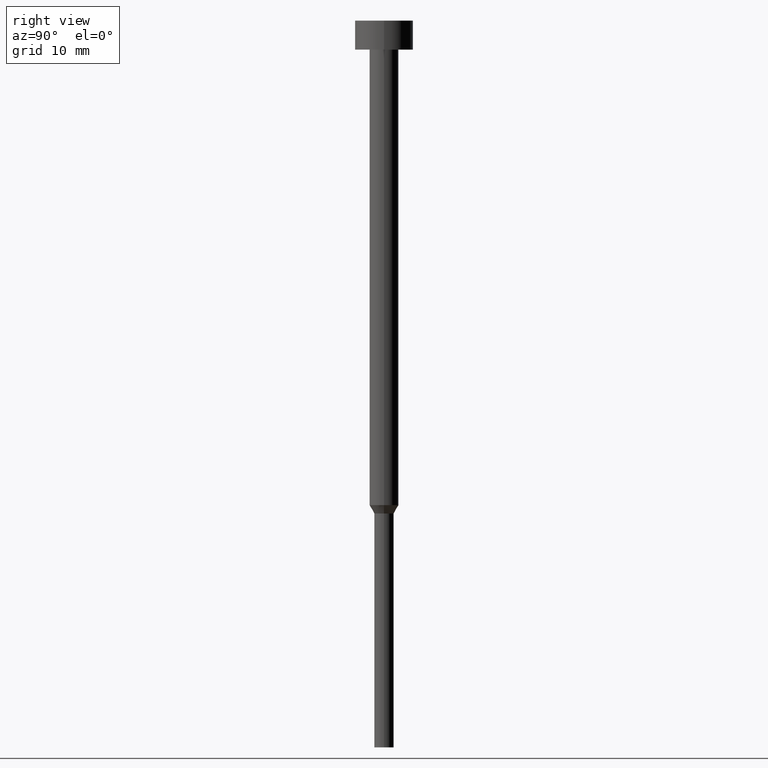
[diagram: clean part render]
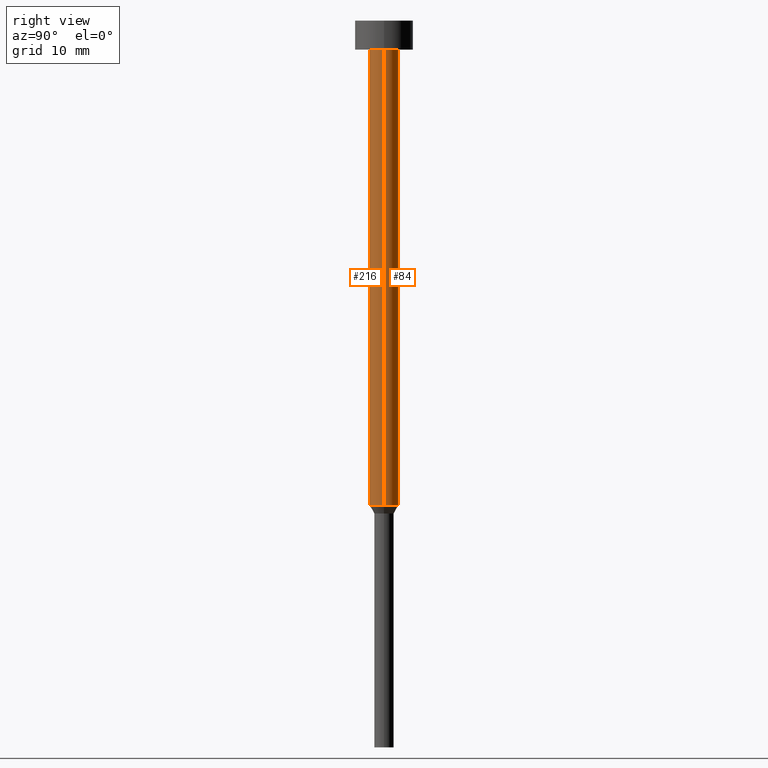
[diagram: same view with one multi-face feature highlighted, each face labeled with its STEP entity id]
A machine part, right view. The highlighted faces form ONE feature: a constant-radius fillet chain: 2 tangent blend faces with common blend radius 1.5 mm. The faces share edges in the B-rep.
Their STEP definitions:
[1] entity #216 (Cylinder):
#16 = CYLINDRICAL_SURFACE ( 'NONE', #341, 1.500000000000000000 ) ;
#17 = CARTESIAN_POINT ( 'NONE',  ( 0.000000000000000000, 0.000000000000000000, 0.000000000000000000 ) ) ;
#19 = DIRECTION ( 'NONE',  ( 1.000000000000000000, 0.000000000000000000, 0.000000000000000000 ) ) ;
#34 = CIRCLE ( 'NONE', #238, 1.500000000000000000 ) ;
#38 = DIRECTION ( 'NONE',  ( 1.000000000000000000, 0.000000000000000000, 0.000000000000000000 ) ) ;
#44 = VECTOR ( 'NONE', #284, 1000.000000000000000 ) ;
#58 = LINE ( 'NONE', #142, #86 ) ;
#78 = VERTEX_POINT ( 'NONE', #136 ) ;
#86 = VECTOR ( 'NONE', #225, 1000.000000000000000 ) ;
#100 = DIRECTION ( 'NONE',  ( -0.000000000000000000, -0.000000000000000000, 1.000000000000000000 ) ) ;
#101 = EDGE_CURVE ( 'NONE', #291, #262, #34, .T. ) ;
#109 = LINE ( 'NONE', #169, #44 ) ;
#117 = EDGE_CURVE ( 'NONE', #262, #78, #109, .T. ) ;
#121 = CARTESIAN_POINT ( 'NONE',  ( 1.500000000000000000, 0.000000000000000000, -50.00000000000000000 ) ) ;
#136 = CARTESIAN_POINT ( 'NONE',  ( 1.500000000000000000, 0.000000000000000000, -3.000000000000000444 ) ) ;
#142 = CARTESIAN_POINT ( 'NONE',  ( -1.500000000000000000, 1.836970198721029934E-16, 0.000000000000000000 ) ) ;
#149 = CIRCLE ( 'NONE', #288, 1.500000000000000000 ) ;
#157 = FACE_OUTER_BOUND ( 'NONE', #172, .T. ) ;
#169 = CARTESIAN_POINT ( 'NONE',  ( 1.500000000000000000, 0.000000000000000000, 0.000000000000000000 ) ) ;
#172 = EDGE_LOOP ( 'NONE', ( #281, #231, #264, #306 ) ) ;
#176 = CARTESIAN_POINT ( 'NONE',  ( -1.500000000000000000, 1.836970198721029934E-16, -50.00000000000000000 ) ) ;
#179 = EDGE_CURVE ( 'NONE', #291, #304, #58, .T. ) ;
#194 = DIRECTION ( 'NONE',  ( -0.000000000000000000, -0.000000000000000000, 1.000000000000000000 ) ) ;
#216 = ADVANCED_FACE ( 'NONE', ( #157 ), #16, .T. ) ;
#225 = DIRECTION ( 'NONE',  ( -0.000000000000000000, -0.000000000000000000, 1.000000000000000000 ) ) ;
#231 = ORIENTED_EDGE ( 'NONE', *, *, #101, .T. ) ;
#238 = AXIS2_PLACEMENT_3D ( 'NONE', #330, #194, #254 ) ;
#254 = DIRECTION ( 'NONE',  ( 1.000000000000000000, 0.000000000000000000, 0.000000000000000000 ) ) ;
#262 = VERTEX_POINT ( 'NONE', #121 ) ;
#264 = ORIENTED_EDGE ( 'NONE', *, *, #117, .T. ) ;
#274 = CARTESIAN_POINT ( 'NONE',  ( 0.000000000000000000, 0.000000000000000000, -3.000000000000000444 ) ) ;
#281 = ORIENTED_EDGE ( 'NONE', *, *, #179, .F. ) ;
#284 = DIRECTION ( 'NONE',  ( -0.000000000000000000, -0.000000000000000000, 1.000000000000000000 ) ) ;
#288 = AXIS2_PLACEMENT_3D ( 'NONE', #274, #100, #19 ) ;
#289 = CARTESIAN_POINT ( 'NONE',  ( -1.500000000000000000, 1.836970198721029934E-16, -3.000000000000000444 ) ) ;
#291 = VERTEX_POINT ( 'NONE', #176 ) ;
#293 = DIRECTION ( 'NONE',  ( -0.000000000000000000, -0.000000000000000000, 1.000000000000000000 ) ) ;
#304 = VERTEX_POINT ( 'NONE', #289 ) ;
#306 = ORIENTED_EDGE ( 'NONE', *, *, #353, .F. ) ;
#330 = CARTESIAN_POINT ( 'NONE',  ( 0.000000000000000000, 0.000000000000000000, -50.00000000000000000 ) ) ;
#341 = AXIS2_PLACEMENT_3D ( 'NONE', #17, #293, #38 ) ;
#353 = EDGE_CURVE ( 'NONE', #304, #78, #149, .T. ) ;
[2] entity #84 (Cylinder):
#6 = AXIS2_PLACEMENT_3D ( 'NONE', #249, #218, #251 ) ;
#7 = CIRCLE ( 'NONE', #355, 1.500000000000000000 ) ;
#11 = ORIENTED_EDGE ( 'NONE', *, *, #190, .F. ) ;
#18 = DIRECTION ( 'NONE',  ( -0.000000000000000000, -0.000000000000000000, 1.000000000000000000 ) ) ;
#44 = VECTOR ( 'NONE', #284, 1000.000000000000000 ) ;
#46 = EDGE_CURVE ( 'NONE', #262, #291, #75, .T. ) ;
#48 = FACE_OUTER_BOUND ( 'NONE', #354, .T. ) ;
#58 = LINE ( 'NONE', #142, #86 ) ;
#75 = CIRCLE ( 'NONE', #111, 1.500000000000000000 ) ;
#78 = VERTEX_POINT ( 'NONE', #136 ) ;
#84 = ADVANCED_FACE ( 'NONE', ( #48 ), #164, .T. ) ;
#86 = VECTOR ( 'NONE', #225, 1000.000000000000000 ) ;
#109 = LINE ( 'NONE', #169, #44 ) ;
#111 = AXIS2_PLACEMENT_3D ( 'NONE', #270, #18, #248 ) ;
#117 = EDGE_CURVE ( 'NONE', #262, #78, #109, .T. ) ;
#118 = CARTESIAN_POINT ( 'NONE',  ( 0.000000000000000000, 0.000000000000000000, -3.000000000000000444 ) ) ;
#121 = CARTESIAN_POINT ( 'NONE',  ( 1.500000000000000000, 0.000000000000000000, -50.00000000000000000 ) ) ;
#136 = CARTESIAN_POINT ( 'NONE',  ( 1.500000000000000000, 0.000000000000000000, -3.000000000000000444 ) ) ;
#142 = CARTESIAN_POINT ( 'NONE',  ( -1.500000000000000000, 1.836970198721029934E-16, 0.000000000000000000 ) ) ;
#148 = DIRECTION ( 'NONE',  ( 1.000000000000000000, 0.000000000000000000, 0.000000000000000000 ) ) ;
#164 = CYLINDRICAL_SURFACE ( 'NONE', #6, 1.500000000000000000 ) ;
#169 = CARTESIAN_POINT ( 'NONE',  ( 1.500000000000000000, 0.000000000000000000, 0.000000000000000000 ) ) ;
#176 = CARTESIAN_POINT ( 'NONE',  ( -1.500000000000000000, 1.836970198721029934E-16, -50.00000000000000000 ) ) ;
#179 = EDGE_CURVE ( 'NONE', #291, #304, #58, .T. ) ;
#190 = EDGE_CURVE ( 'NONE', #78, #304, #7, .T. ) ;
#196 = DIRECTION ( 'NONE',  ( -0.000000000000000000, -0.000000000000000000, 1.000000000000000000 ) ) ;
#218 = DIRECTION ( 'NONE',  ( -0.000000000000000000, -0.000000000000000000, 1.000000000000000000 ) ) ;
#225 = DIRECTION ( 'NONE',  ( -0.000000000000000000, -0.000000000000000000, 1.000000000000000000 ) ) ;
#248 = DIRECTION ( 'NONE',  ( 1.000000000000000000, 0.000000000000000000, 0.000000000000000000 ) ) ;
#249 = CARTESIAN_POINT ( 'NONE',  ( 0.000000000000000000, 0.000000000000000000, 0.000000000000000000 ) ) ;
#251 = DIRECTION ( 'NONE',  ( 1.000000000000000000, 0.000000000000000000, 0.000000000000000000 ) ) ;
#259 = ORIENTED_EDGE ( 'NONE', *, *, #117, .F. ) ;
#262 = VERTEX_POINT ( 'NONE', #121 ) ;
#270 = CARTESIAN_POINT ( 'NONE',  ( 0.000000000000000000, 0.000000000000000000, -50.00000000000000000 ) ) ;
#284 = DIRECTION ( 'NONE',  ( -0.000000000000000000, -0.000000000000000000, 1.000000000000000000 ) ) ;
#289 = CARTESIAN_POINT ( 'NONE',  ( -1.500000000000000000, 1.836970198721029934E-16, -3.000000000000000444 ) ) ;
#291 = VERTEX_POINT ( 'NONE', #176 ) ;
#304 = VERTEX_POINT ( 'NONE', #289 ) ;
#313 = ORIENTED_EDGE ( 'NONE', *, *, #46, .T. ) ;
#339 = ORIENTED_EDGE ( 'NONE', *, *, #179, .T. ) ;
#354 = EDGE_LOOP ( 'NONE', ( #313, #339, #11, #259 ) ) ;
#355 = AXIS2_PLACEMENT_3D ( 'NONE', #118, #196, #148 ) ;